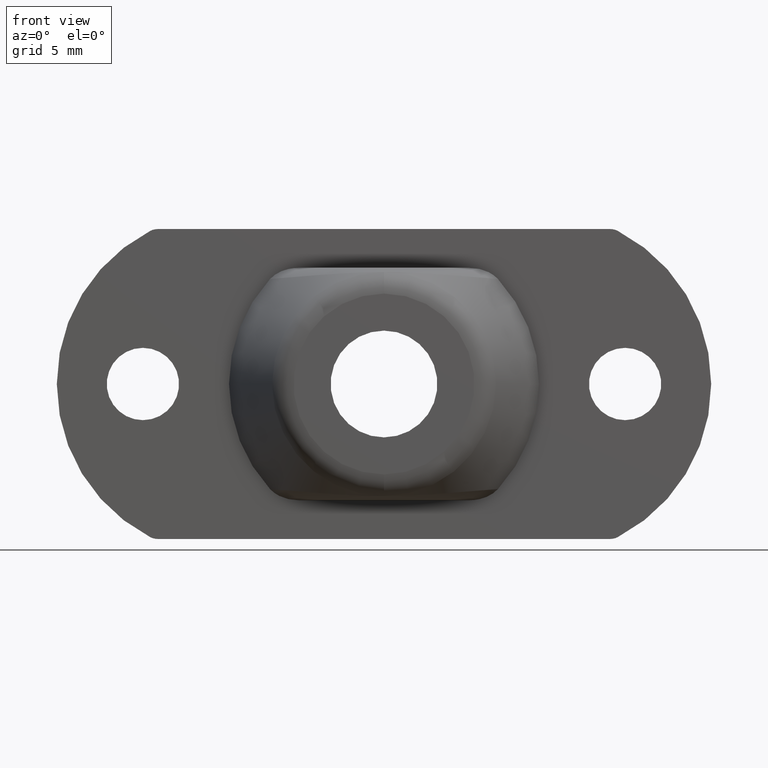
[diagram: clean part render]
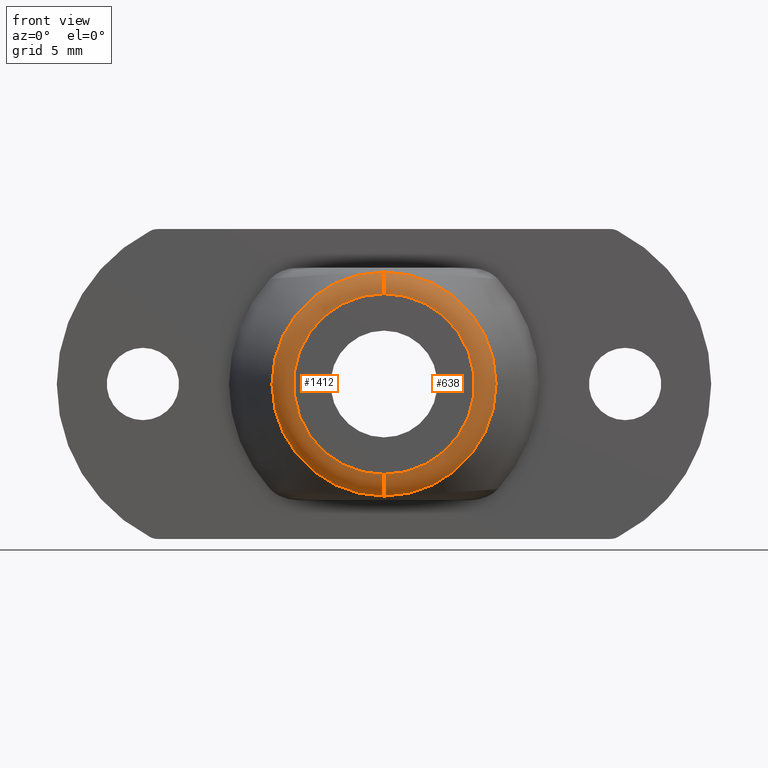
[diagram: same view with one multi-face feature highlighted, each face labeled with its STEP entity id]
A machine part, front view. The highlighted faces form ONE feature: a constant-radius fillet chain: 2 tangent blend faces with common blend radius 1.5 mm. The faces share edges in the B-rep.
Their STEP definitions:
[1] entity #1412 (Torus):
#2 = EDGE_CURVE ( 'NONE', #663, #493, #835, .T. ) ;
#27 = CARTESIAN_POINT ( 'NONE',  ( 6.429395695523604200E-016, -4.500000000000110100, 5.250000000000000000 ) ) ;
#38 = AXIS2_PLACEMENT_3D ( 'NONE', #719, #1266, #602 ) ;
#45 = EDGE_CURVE ( 'NONE', #493, #1340, #543, .T. ) ;
#109 = EDGE_CURVE ( 'NONE', #663, #919, #1057, .T. ) ;
#209 = FACE_OUTER_BOUND ( 'NONE', #1225, .T. ) ;
#327 = DIRECTION ( 'NONE',  ( 0.0000000000000000000, 0.0000000000000000000, -1.000000000000000000 ) ) ;
#348 = DIRECTION ( 'NONE',  ( -0.0000000000000000000, 1.000000000000000000, -0.0000000000000000000 ) ) ;
#357 = CARTESIAN_POINT ( 'NONE',  ( 7.198482475565421700E-016, -6.000000000000110100, 5.250000000000000000 ) ) ;
#415 = CARTESIAN_POINT ( 'NONE',  ( 0.0000000000000000000, -5.320017536030269900, -6.506014028824109700 ) ) ;
#429 = AXIS2_PLACEMENT_3D ( 'NONE', #994, #763, #327 ) ;
#446 = EDGE_CURVE ( 'NONE', #1340, #919, #764, .T. ) ;
#493 = VERTEX_POINT ( 'NONE', #1400 ) ;
#543 = CIRCLE ( 'NONE', #1228, 1.500000000000000000 ) ;
#578 = CARTESIAN_POINT ( 'NONE',  ( 0.0000000000000000000, -6.000000000000110100, -5.250000000000000000 ) ) ;
#602 = DIRECTION ( 'NONE',  ( 0.0000000000000000000, 0.0000000000000000000, 1.000000000000000000 ) ) ;
#663 = VERTEX_POINT ( 'NONE', #415 ) ;
#679 = DIRECTION ( 'NONE',  ( 0.0000000000000000000, 0.0000000000000000000, -1.000000000000000000 ) ) ;
#698 = DIRECTION ( 'NONE',  ( 1.000000000000000000, 0.0000000000000000000, -1.224646799147353200E-016 ) ) ;
#719 = CARTESIAN_POINT ( 'NONE',  ( 0.0000000000000000000, -4.500000000000110100, -5.250000000000000000 ) ) ;
#763 = DIRECTION ( 'NONE',  ( 0.0000000000000000000, -1.000000000000000000, 0.0000000000000000000 ) ) ;
#764 = CIRCLE ( 'NONE', #1310, 5.250000000000000000 ) ;
#767 = CARTESIAN_POINT ( 'NONE',  ( 0.0000000000000000000, -6.000000000000110100, 0.0000000000000000000 ) ) ;
#769 = ORIENTED_EDGE ( 'NONE', *, *, #446, .F. ) ;
#792 = CARTESIAN_POINT ( 'NONE',  ( 0.0000000000000000000, -5.320017536030269900, 0.0000000000000000000 ) ) ;
#835 = CIRCLE ( 'NONE', #1075, 6.506014028824109700 ) ;
#850 = ORIENTED_EDGE ( 'NONE', *, *, #2, .F. ) ;
#919 = VERTEX_POINT ( 'NONE', #578 ) ;
#932 = ORIENTED_EDGE ( 'NONE', *, *, #45, .F. ) ;
#994 = CARTESIAN_POINT ( 'NONE',  ( 0.0000000000000000000, -4.500000000000110100, 0.0000000000000000000 ) ) ;
#1057 = CIRCLE ( 'NONE', #38, 1.500000000000000000 ) ;
#1075 = AXIS2_PLACEMENT_3D ( 'NONE', #792, #348, #679 ) ;
#1225 = EDGE_LOOP ( 'NONE', ( #932, #850, #1380, #769 ) ) ;
#1228 = AXIS2_PLACEMENT_3D ( 'NONE', #27, #698, #1364 ) ;
#1266 = DIRECTION ( 'NONE',  ( -1.000000000000000000, -0.0000000000000000000, -0.0000000000000000000 ) ) ;
#1308 = DIRECTION ( 'NONE',  ( 0.0000000000000000000, 0.0000000000000000000, -1.000000000000000000 ) ) ;
#1310 = AXIS2_PLACEMENT_3D ( 'NONE', #767, #1337, #1308 ) ;
#1337 = DIRECTION ( 'NONE',  ( 0.0000000000000000000, -1.000000000000000000, 0.0000000000000000000 ) ) ;
#1340 = VERTEX_POINT ( 'NONE', #357 ) ;
#1353 = TOROIDAL_SURFACE ( 'NONE', #429, 5.250000000000000000, 1.500000000000000000 ) ;
#1364 = DIRECTION ( 'NONE',  ( -1.224646799147353200E-016, 0.0000000000000000000, -1.000000000000000000 ) ) ;
#1380 = ORIENTED_EDGE ( 'NONE', *, *, #109, .T. ) ;
#1400 = CARTESIAN_POINT ( 'NONE',  ( -2.907818048251100100E-016, -5.320017536030269900, 6.506014028824109700 ) ) ;
#1412 = ADVANCED_FACE ( 'NONE', ( #209 ), #1353, .T. ) ;
[2] entity #638 (Torus):
#27 = CARTESIAN_POINT ( 'NONE',  ( 6.429395695523604200E-016, -4.500000000000110100, 5.250000000000000000 ) ) ;
#38 = AXIS2_PLACEMENT_3D ( 'NONE', #719, #1266, #602 ) ;
#45 = EDGE_CURVE ( 'NONE', #493, #1340, #543, .T. ) ;
#93 = DIRECTION ( 'NONE',  ( 0.0000000000000000000, -1.000000000000000000, 0.0000000000000000000 ) ) ;
#109 = EDGE_CURVE ( 'NONE', #663, #919, #1057, .T. ) ;
#137 = CIRCLE ( 'NONE', #237, 6.506014028824109700 ) ;
#237 = AXIS2_PLACEMENT_3D ( 'NONE', #514, #955, #855 ) ;
#301 = ORIENTED_EDGE ( 'NONE', *, *, #1197, .F. ) ;
#357 = CARTESIAN_POINT ( 'NONE',  ( 7.198482475565421700E-016, -6.000000000000110100, 5.250000000000000000 ) ) ;
#363 = TOROIDAL_SURFACE ( 'NONE', #490, 5.250000000000000000, 1.500000000000000000 ) ;
#372 = ORIENTED_EDGE ( 'NONE', *, *, #109, .F. ) ;
#415 = CARTESIAN_POINT ( 'NONE',  ( 0.0000000000000000000, -5.320017536030269900, -6.506014028824109700 ) ) ;
#477 = EDGE_CURVE ( 'NONE', #493, #663, #137, .T. ) ;
#490 = AXIS2_PLACEMENT_3D ( 'NONE', #1078, #1304, #757 ) ;
#493 = VERTEX_POINT ( 'NONE', #1400 ) ;
#514 = CARTESIAN_POINT ( 'NONE',  ( 0.0000000000000000000, -5.320017536030269900, 0.0000000000000000000 ) ) ;
#543 = CIRCLE ( 'NONE', #1228, 1.500000000000000000 ) ;
#578 = CARTESIAN_POINT ( 'NONE',  ( 0.0000000000000000000, -6.000000000000110100, -5.250000000000000000 ) ) ;
#579 = CIRCLE ( 'NONE', #894, 5.250000000000000000 ) ;
#602 = DIRECTION ( 'NONE',  ( 0.0000000000000000000, 0.0000000000000000000, 1.000000000000000000 ) ) ;
#638 = ADVANCED_FACE ( 'NONE', ( #1149 ), #363, .T. ) ;
#663 = VERTEX_POINT ( 'NONE', #415 ) ;
#698 = DIRECTION ( 'NONE',  ( 1.000000000000000000, 0.0000000000000000000, -1.224646799147353200E-016 ) ) ;
#719 = CARTESIAN_POINT ( 'NONE',  ( 0.0000000000000000000, -4.500000000000110100, -5.250000000000000000 ) ) ;
#757 = DIRECTION ( 'NONE',  ( 0.0000000000000000000, 0.0000000000000000000, -1.000000000000000000 ) ) ;
#760 = CARTESIAN_POINT ( 'NONE',  ( 0.0000000000000000000, -6.000000000000110100, 0.0000000000000000000 ) ) ;
#855 = DIRECTION ( 'NONE',  ( 0.0000000000000000000, 0.0000000000000000000, -1.000000000000000000 ) ) ;
#868 = DIRECTION ( 'NONE',  ( 0.0000000000000000000, 0.0000000000000000000, -1.000000000000000000 ) ) ;
#894 = AXIS2_PLACEMENT_3D ( 'NONE', #760, #93, #868 ) ;
#919 = VERTEX_POINT ( 'NONE', #578 ) ;
#955 = DIRECTION ( 'NONE',  ( -0.0000000000000000000, 1.000000000000000000, -0.0000000000000000000 ) ) ;
#1057 = CIRCLE ( 'NONE', #38, 1.500000000000000000 ) ;
#1078 = CARTESIAN_POINT ( 'NONE',  ( 0.0000000000000000000, -4.500000000000110100, 0.0000000000000000000 ) ) ;
#1149 = FACE_OUTER_BOUND ( 'NONE', #1218, .T. ) ;
#1197 = EDGE_CURVE ( 'NONE', #919, #1340, #579, .T. ) ;
#1218 = EDGE_LOOP ( 'NONE', ( #1436, #1343, #301, #372 ) ) ;
#1228 = AXIS2_PLACEMENT_3D ( 'NONE', #27, #698, #1364 ) ;
#1266 = DIRECTION ( 'NONE',  ( -1.000000000000000000, -0.0000000000000000000, -0.0000000000000000000 ) ) ;
#1304 = DIRECTION ( 'NONE',  ( 0.0000000000000000000, -1.000000000000000000, 0.0000000000000000000 ) ) ;
#1340 = VERTEX_POINT ( 'NONE', #357 ) ;
#1343 = ORIENTED_EDGE ( 'NONE', *, *, #45, .T. ) ;
#1364 = DIRECTION ( 'NONE',  ( -1.224646799147353200E-016, 0.0000000000000000000, -1.000000000000000000 ) ) ;
#1400 = CARTESIAN_POINT ( 'NONE',  ( -2.907818048251100100E-016, -5.320017536030269900, 6.506014028824109700 ) ) ;
#1436 = ORIENTED_EDGE ( 'NONE', *, *, #477, .F. ) ;